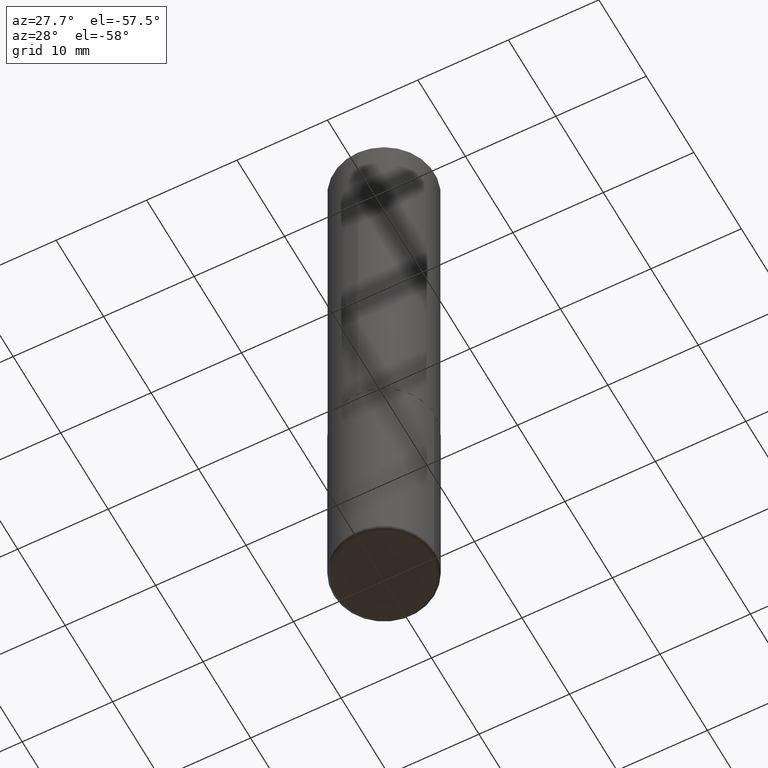
[diagram: clean part render]
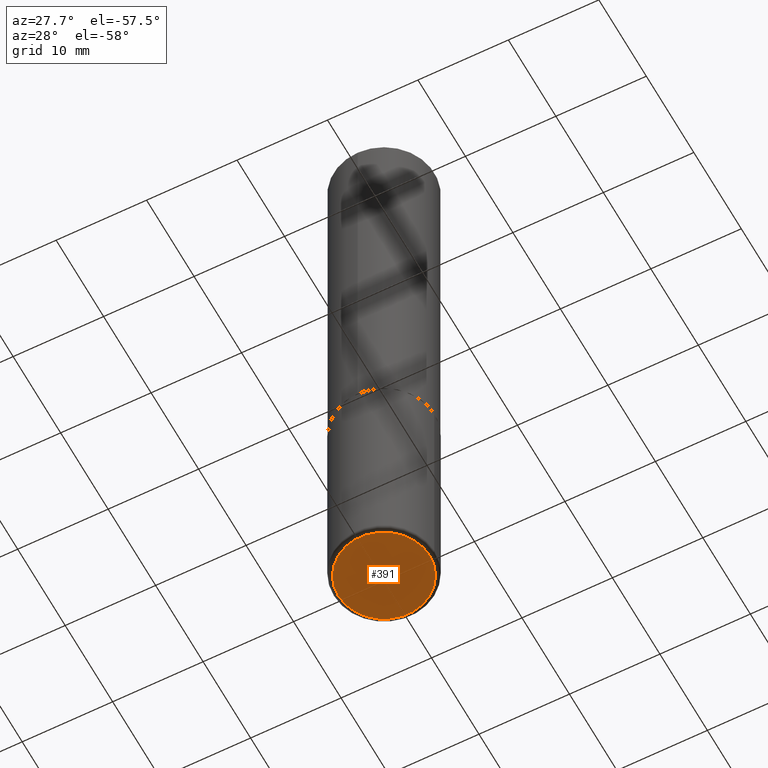
[diagram: same view with one face highlighted and labeled with its STEP entity id]
A machine part, auxiliary view. The second image highlights one B-rep face of the part: STEP entity #391.
In plain terms, the highlighted planar face has unit normal (0, -0, -1).
Its self-contained STEP definition (entity closure, byte-faithful):
#18 = ORIENTED_EDGE ( 'NONE', *, *, #339, .F. ) ;
#33 = DIRECTION ( 'NONE',  ( 1.000000000000000000, -6.982962677686265133E-15, 0.000000000000000000 ) ) ;
#36 = CARTESIAN_POINT ( 'NONE',  ( -0.1987500000000000100, -8.083400907531010713E-15, -2.750000000000000000 ) ) ;
#41 = DIRECTION ( 'NONE',  ( -1.000000000000000000, 6.982962677686265922E-15, -4.876176775795935793E-29 ) ) ;
#42 = CARTESIAN_POINT ( 'NONE',  ( 6.725039217009124520E-29, -9.601573681818649859E-15, -2.750000000000000000 ) ) ;
#54 = DIRECTION ( 'NONE',  ( 1.000000000000000000, -6.982962677686265133E-15, 0.000000000000000000 ) ) ;
#98 = DIRECTION ( 'NONE',  ( -2.445468806185136597E-29, 3.491481338843145583E-15, 1.000000000000000000 ) ) ;
#109 = VERTEX_POINT ( 'NONE', #354 ) ;
#114 = VERTEX_POINT ( 'NONE', #36 ) ;
#143 = EDGE_LOOP ( 'NONE', ( #18, #148 ) ) ;
#148 = ORIENTED_EDGE ( 'NONE', *, *, #190, .F. ) ;
#152 = AXIS2_PLACEMENT_3D ( 'NONE', #42, #167, #41 ) ;
#159 = CARTESIAN_POINT ( 'NONE',  ( 6.725039217009124520E-29, -9.601573681818649859E-15, -2.750000000000000000 ) ) ;
#167 = DIRECTION ( 'NONE',  ( 2.438088387897960049E-29, -3.491481338843145188E-15, -1.000000000000000000 ) ) ;
#178 = AXIS2_PLACEMENT_3D ( 'NONE', #159, #98, #33 ) ;
#179 = CIRCLE ( 'NONE', #389, 0.1987500000000000100 ) ;
#190 = EDGE_CURVE ( 'NONE', #114, #109, #206, .T. ) ;
#196 = CARTESIAN_POINT ( 'NONE',  ( 6.725039217009124520E-29, -9.601573681818649859E-15, -2.750000000000000000 ) ) ;
#200 = DIRECTION ( 'NONE',  ( -2.445468806185136597E-29, 3.491481338843145583E-15, 1.000000000000000000 ) ) ;
#206 = CIRCLE ( 'NONE', #178, 0.1987500000000000100 ) ;
#231 = FACE_OUTER_BOUND ( 'NONE', #143, .T. ) ;
#320 = PLANE ( 'NONE',  #152 ) ;
#339 = EDGE_CURVE ( 'NONE', #109, #114, #179, .T. ) ;
#354 = CARTESIAN_POINT ( 'NONE',  ( 0.1987500000000000100, -1.098943751400879489E-14, -2.750000000000000000 ) ) ;
#389 = AXIS2_PLACEMENT_3D ( 'NONE', #196, #200, #54 ) ;
#391 = ADVANCED_FACE ( 'NONE', ( #231 ), #320, .T. ) ;